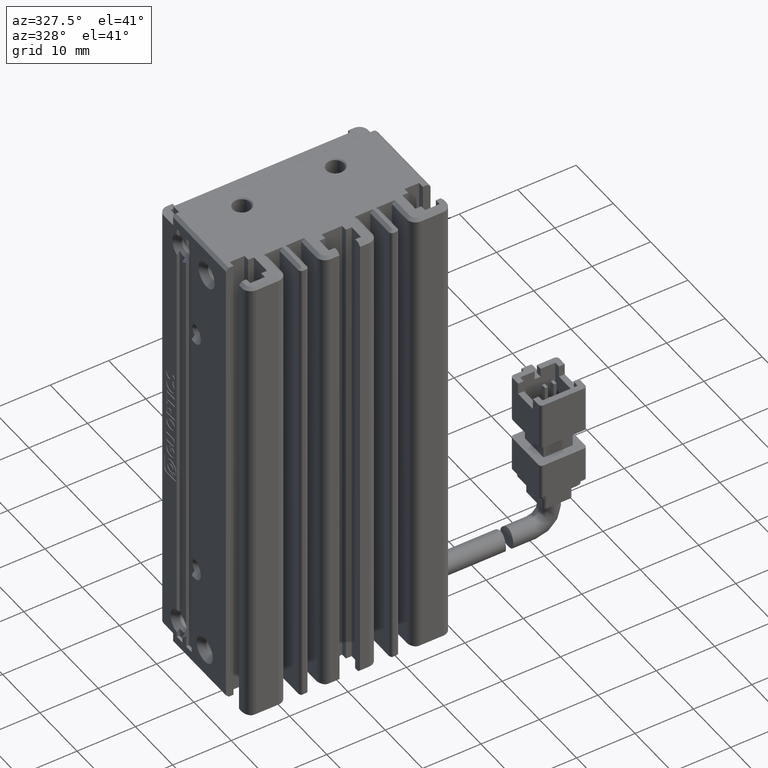
[diagram: clean part render]
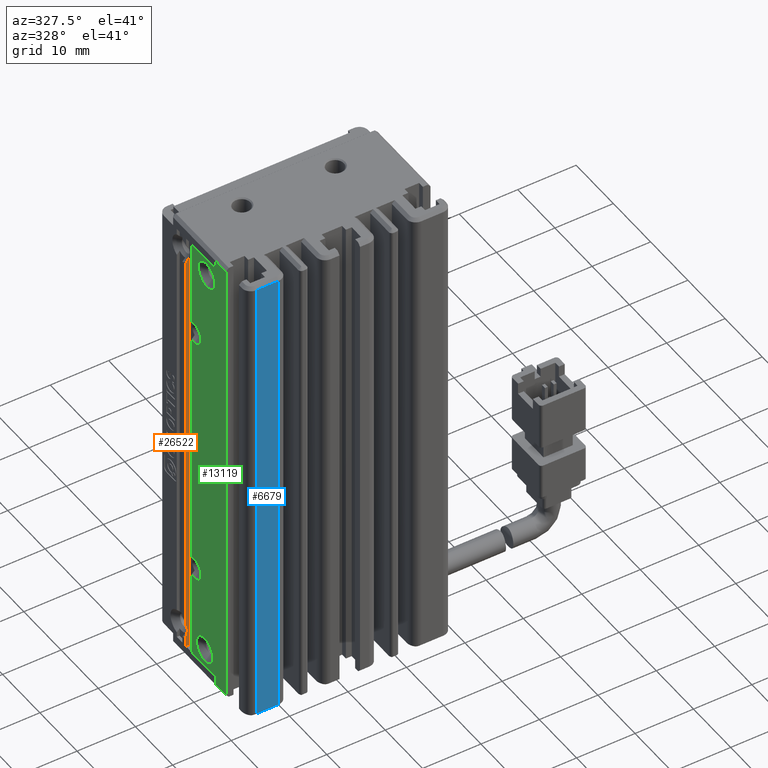
[diagram: same view with three faces highlighted in distinct colors, each labeled with its STEP entity id]
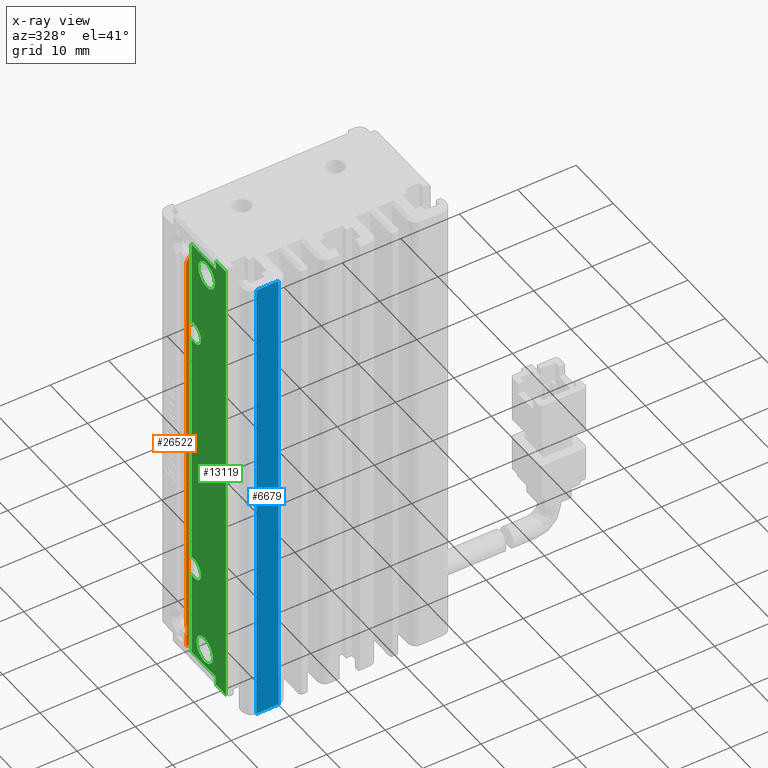
[diagram: x-ray of the same camera — body ghosted, the three highlighted faces saturated]
A machine part, auxiliary view with three faces highlighted in distinct colors.
The next image is the same camera in x-ray (body ghosted, the three faces saturated) — at least one of them is partly hidden behind the body in this view.
Their STEP definitions:

[orange] entity #26522 — the highlighted planar face has unit normal (0, 1, 0).
#1614 = CARTESIAN_POINT ( 'NONE',  ( 23.61318057848740200, 27.49073232304837700, -80.35262142458795200 ) ) ;
#2019 = DIRECTION ( 'NONE',  ( -1.000000000000000000, -0.0000000000000000000, 0.0000000000000000000 ) ) ;
#2197 = LINE ( 'NONE', #5284, #15017 ) ;
#3557 = VERTEX_POINT ( 'NONE', #4942 ) ;
#3917 = DIRECTION ( 'NONE',  ( 0.0000000000000000000, -0.0000000000000000000, 1.000000000000000000 ) ) ;
#4475 = EDGE_CURVE ( 'NONE', #17369, #20362, #8513, .T. ) ;
#4644 = ORIENTED_EDGE ( 'NONE', *, *, #4475, .F. ) ;
#4841 = DIRECTION ( 'NONE',  ( 0.0000000000000000000, 1.000000000000000000, 0.0000000000000000000 ) ) ;
#4942 = CARTESIAN_POINT ( 'NONE',  ( 23.42537974683542100, 27.49073232304837700, -154.0000000000000000 ) ) ;
#5284 = CARTESIAN_POINT ( 'NONE',  ( 23.92537974683542500, 27.49073232304837700, -74.00000000000001400 ) ) ;
#5932 = ORIENTED_EDGE ( 'NONE', *, *, #29307, .T. ) ;
#8513 = LINE ( 'NONE', #27758, #18546 ) ;
#8790 = VERTEX_POINT ( 'NONE', #26025 ) ;
#8810 = CARTESIAN_POINT ( 'NONE',  ( 23.42537974684338300, 27.49073232304837700, -151.9165151390459100 ) ) ;
#10890 = CARTESIAN_POINT ( 'NONE',  ( 23.42537974687180500, 27.49073232304837700, -80.60934769393912800 ) ) ;
#11009 = CARTESIAN_POINT ( 'NONE',  ( 23.78947896630798900, 27.49073232305029200, -80.08878915868484700 ) ) ;
#11270 = CARTESIAN_POINT ( 'NONE',  ( 23.62542448601338300, 27.49073232304838000, -151.3165876914230200 ) ) ;
#11399 = CARTESIAN_POINT ( 'NONE',  ( 23.53635299069658200, 27.49073232304837700, -150.3786627681278400 ) ) ;
#12175 = CARTESIAN_POINT ( 'NONE',  ( 23.92537974684820400, 27.49073232304837700, -79.80000000004396600 ) ) ;
#12296 = B_SPLINE_CURVE_WITH_KNOTS ( 'NONE', 3,
 ( #31993, #20212, #11399, #14427, #37648, #11270, #29149, #8810 ),
 .UNSPECIFIED., .F., .F.,
 ( 4, 2, 2, 4 ),
 ( 4.723738155263230500E-014, 0.0004690739845960369400, 0.0009381479691448365000, 0.001876295938242435600 ),
 .UNSPECIFIED. ) ;
#12581 = EDGE_CURVE ( 'NONE', #3557, #8790, #32488, .T. ) ;
#12651 = B_SPLINE_CURVE_WITH_KNOTS ( 'NONE', 3,
 ( #34187, #11009, #1614, #10890 ),
 .UNSPECIFIED., .F., .F.,
 ( 4, 4 ),
 ( 2.972244101261711800E-014, 0.0009513378420132232700 ),
 .UNSPECIFIED. ) ;
#13978 = CARTESIAN_POINT ( 'NONE',  ( 23.42537974684338300, 27.49073232304837700, -150.0834848609541400 ) ) ;
#14427 = CARTESIAN_POINT ( 'NONE',  ( 23.60594463680136100, 27.49073232304837300, -150.6835425281643100 ) ) ;
#15017 = VECTOR ( 'NONE', #37218, 1000.000000000000000 ) ;
#15380 = EDGE_CURVE ( 'NONE', #32893, #3557, #35131, .T. ) ;
#16167 = EDGE_LOOP ( 'NONE', ( #26963, #4644, #30639, #30288, #33846, #5932 ) ) ;
#16854 = VECTOR ( 'NONE', #29603, 1000.000000000000000 ) ;
#17369 = VERTEX_POINT ( 'NONE', #13978 ) ;
#17704 = AXIS2_PLACEMENT_3D ( 'NONE', #22613, #4841, #25320 ) ;
#17716 = EDGE_CURVE ( 'NONE', #33332, #20362, #12651, .T. ) ;
#18546 = VECTOR ( 'NONE', #3917, 1000.000000000000000 ) ;
#19413 = PLANE ( 'NONE',  #17704 ) ;
#20212 = CARTESIAN_POINT ( 'NONE',  ( 23.48633122258648600, 27.49073232305220300, -150.2297925878349100 ) ) ;
#20362 = VERTEX_POINT ( 'NONE', #22606 ) ;
#20544 = CARTESIAN_POINT ( 'NONE',  ( 23.42537974683542500, 27.49073232304837700, -74.00000000000001400 ) ) ;
#22606 = CARTESIAN_POINT ( 'NONE',  ( 23.42537974687180500, 27.49073232304837700, -80.60934769393912800 ) ) ;
#22613 = CARTESIAN_POINT ( 'NONE',  ( 40.92537974683542500, 27.49073232304837700, -74.00000000000001400 ) ) ;
#24478 = EDGE_CURVE ( 'NONE', #17369, #8790, #12296, .T. ) ;
#25320 = DIRECTION ( 'NONE',  ( 0.0000000000000000000, -0.0000000000000000000, 1.000000000000000000 ) ) ;
#26025 = CARTESIAN_POINT ( 'NONE',  ( 23.42537974684338300, 27.49073232304837700, -151.9165151390459100 ) ) ;
#26522 = ADVANCED_FACE ( 'NONE', ( #30781 ), #19413, .F. ) ;
#26963 = ORIENTED_EDGE ( 'NONE', *, *, #17716, .T. ) ;
#27758 = CARTESIAN_POINT ( 'NONE',  ( 23.42537974683542100, 27.49073232304837700, -74.00000000000001400 ) ) ;
#29149 = CARTESIAN_POINT ( 'NONE',  ( 23.54746813437199300, 27.49073232304837300, -151.6234545652118600 ) ) ;
#29307 = EDGE_CURVE ( 'NONE', #32893, #33332, #2197, .T. ) ;
#29603 = DIRECTION ( 'NONE',  ( 0.0000000000000000000, -0.0000000000000000000, 1.000000000000000000 ) ) ;
#30288 = ORIENTED_EDGE ( 'NONE', *, *, #12581, .F. ) ;
#30639 = ORIENTED_EDGE ( 'NONE', *, *, #24478, .T. ) ;
#30781 = FACE_OUTER_BOUND ( 'NONE', #16167, .T. ) ;
#31266 = CARTESIAN_POINT ( 'NONE',  ( 40.92537974683542500, 27.49073232304837700, -154.0000000000000000 ) ) ;
#31993 = CARTESIAN_POINT ( 'NONE',  ( 23.42537974684338300, 27.49073232304837700, -150.0834848609541400 ) ) ;
#32383 = VECTOR ( 'NONE', #2019, 1000.000000000000000 ) ;
#32488 = LINE ( 'NONE', #20544, #16854 ) ;
#32893 = VERTEX_POINT ( 'NONE', #35616 ) ;
#33332 = VERTEX_POINT ( 'NONE', #12175 ) ;
#33846 = ORIENTED_EDGE ( 'NONE', *, *, #15380, .F. ) ;
#34187 = CARTESIAN_POINT ( 'NONE',  ( 23.92537974684820400, 27.49073232304837700, -79.80000000004396600 ) ) ;
#35131 = LINE ( 'NONE', #31266, #32383 ) ;
#35616 = CARTESIAN_POINT ( 'NONE',  ( 23.92537974683542500, 27.49073232304837700, -154.0000000000000000 ) ) ;
#37218 = DIRECTION ( 'NONE',  ( 0.0000000000000000000, -0.0000000000000000000, 1.000000000000000000 ) ) ;
#37648 = CARTESIAN_POINT ( 'NONE',  ( 23.62535734736366800, 27.49073232304837300, -150.8412823930726700 ) ) ;

[blue] entity #6679 — the highlighted planar face has unit normal (0, -1, 0).
#1297 = CARTESIAN_POINT ( 'NONE',  ( 28.72537974683542200, 10.99073232303147300, -155.4999999999879500 ) ) ;
#2024 = ORIENTED_EDGE ( 'NONE', *, *, #22842, .F. ) ;
#2185 = ORIENTED_EDGE ( 'NONE', *, *, #12808, .T. ) ;
#2326 = DIRECTION ( 'NONE',  ( 0.0000000000000000000, -1.000000000000000000, 0.0000000000000000000 ) ) ;
#2620 = CARTESIAN_POINT ( 'NONE',  ( 28.72537974683542200, 10.99073232304837000, -74.00000000000001400 ) ) ;
#2756 = VERTEX_POINT ( 'NONE', #3594 ) ;
#3594 = CARTESIAN_POINT ( 'NONE',  ( 28.72537974683542200, 10.99073232304568400, -74.49999999999784000 ) ) ;
#4544 = CARTESIAN_POINT ( 'NONE',  ( 40.92537974683542500, 10.99073232304837000, -74.50000000000001400 ) ) ;
#6256 = DIRECTION ( 'NONE',  ( -1.000000000000000000, -0.0000000000000000000, -0.0000000000000000000 ) ) ;
#6650 = EDGE_LOOP ( 'NONE', ( #18860, #2024, #7963, #2185 ) ) ;
#6679 = ADVANCED_FACE ( 'NONE', ( #30712 ), #16915, .T. ) ;
#7293 = DIRECTION ( 'NONE',  ( 0.0000000000000000000, -0.0000000000000000000, -1.000000000000000000 ) ) ;
#7455 = DIRECTION ( 'NONE',  ( -1.000000000000000000, 0.0000000000000000000, -0.0000000000000000000 ) ) ;
#7963 = ORIENTED_EDGE ( 'NONE', *, *, #31501, .T. ) ;
#8749 = VECTOR ( 'NONE', #7293, 1000.000000000000000 ) ;
#9404 = VECTOR ( 'NONE', #19817, 1000.000000000000000 ) ;
#10019 = CARTESIAN_POINT ( 'NONE',  ( 24.92537974683542500, 10.99073232304837000, -74.00000000000001400 ) ) ;
#12808 = EDGE_CURVE ( 'NONE', #2756, #21972, #23233, .T. ) ;
#13069 = VERTEX_POINT ( 'NONE', #21145 ) ;
#16915 = PLANE ( 'NONE',  #20413 ) ;
#18860 = ORIENTED_EDGE ( 'NONE', *, *, #35378, .T. ) ;
#19817 = DIRECTION ( 'NONE',  ( -0.0000000000000000000, 0.0000000000000000000, 1.000000000000000000 ) ) ;
#20413 = AXIS2_PLACEMENT_3D ( 'NONE', #37463, #2326, #34132 ) ;
#20494 = CARTESIAN_POINT ( 'NONE',  ( 40.92537974683542500, 10.99073232304837000, -155.5000000000000000 ) ) ;
#21145 = CARTESIAN_POINT ( 'NONE',  ( 24.92537974683541800, 10.99073232307142000, -155.4999999999759000 ) ) ;
#21972 = VERTEX_POINT ( 'NONE', #29633 ) ;
#22842 = EDGE_CURVE ( 'NONE', #37498, #13069, #35906, .T. ) ;
#23233 = LINE ( 'NONE', #4544, #34253 ) ;
#26699 = VECTOR ( 'NONE', #6256, 1000.000000000000000 ) ;
#29633 = CARTESIAN_POINT ( 'NONE',  ( 24.92537974683542500, 10.99073232301726200, -74.50000000001097100 ) ) ;
#30712 = FACE_OUTER_BOUND ( 'NONE', #6650, .T. ) ;
#31501 = EDGE_CURVE ( 'NONE', #37498, #2756, #33713, .T. ) ;
#33713 = LINE ( 'NONE', #2620, #9404 ) ;
#34132 = DIRECTION ( 'NONE',  ( 0.0000000000000000000, -0.0000000000000000000, -1.000000000000000000 ) ) ;
#34253 = VECTOR ( 'NONE', #7455, 1000.000000000000000 ) ;
#35378 = EDGE_CURVE ( 'NONE', #21972, #13069, #37642, .T. ) ;
#35906 = LINE ( 'NONE', #20494, #26699 ) ;
#37463 = CARTESIAN_POINT ( 'NONE',  ( 40.92537974683542500, 10.99073232304837000, -74.00000000000001400 ) ) ;
#37498 = VERTEX_POINT ( 'NONE', #1297 ) ;
#37642 = LINE ( 'NONE', #10019, #8749 ) ;

[green] entity #13119 — the highlighted planar face has unit normal (-1, 0, 0).
#9 = CARTESIAN_POINT ( 'NONE',  ( 23.42537974690818500, 21.99073232304837300, -79.00000000000000000 ) ) ;
#601 = LINE ( 'NONE', #11858, #3340 ) ;
#1246 = EDGE_CURVE ( 'NONE', #20893, #37728, #9625, .T. ) ;
#1277 = VERTEX_POINT ( 'NONE', #21237 ) ;
#1366 = VECTOR ( 'NONE', #1978, 1000.000000000000000 ) ;
#1786 = CARTESIAN_POINT ( 'NONE',  ( 23.42537974692864800, 25.29073232304837400, -137.5000000000000000 ) ) ;
#1910 = DIRECTION ( 'NONE',  ( 1.000000000000000000, -0.0000000000000000000, -0.0000000000000000000 ) ) ;
#1978 = DIRECTION ( 'NONE',  ( -0.0000000000000000000, -0.0000000000000000000, -1.000000000000000000 ) ) ;
#2124 = EDGE_CURVE ( 'NONE', #33030, #26289, #14557, .T. ) ;
#2209 = CIRCLE ( 'NONE', #15225, 1.800000000002910400 ) ;
#2481 = DIRECTION ( 'NONE',  ( 0.0000000000000000000, -7.709882115440010200E-015, 1.000000000000000000 ) ) ;
#2582 = VECTOR ( 'NONE', #5379, 1000.000000000000000 ) ;
#3080 = DIRECTION ( 'NONE',  ( 1.000000000000000000, -0.0000000000000000000, -0.0000000000000000000 ) ) ;
#3088 = VERTEX_POINT ( 'NONE', #16862 ) ;
#3340 = VECTOR ( 'NONE', #14733, 1000.000000000000000 ) ;
#3987 = ORIENTED_EDGE ( 'NONE', *, *, #2124, .T. ) ;
#3989 = PLANE ( 'NONE',  #13882 ) ;
#4239 = CARTESIAN_POINT ( 'NONE',  ( 23.42537974688772100, 25.29073232304837400, -90.69999999999709000 ) ) ;
#4771 = DIRECTION ( 'NONE',  ( 0.0000000000000000000, 1.000000000000000000, 0.0000000000000000000 ) ) ;
#4901 = ORIENTED_EDGE ( 'NONE', *, *, #12564, .T. ) ;
#5113 = EDGE_CURVE ( 'NONE', #23326, #8621, #6971, .T. ) ;
#5379 = DIRECTION ( 'NONE',  ( 0.0000000000000000000, 1.000000000000000000, 0.0000000000000000000 ) ) ;
#5862 = ORIENTED_EDGE ( 'NONE', *, *, #19368, .F. ) ;
#5883 = LINE ( 'NONE', #7551, #28363 ) ;
#5948 = EDGE_CURVE ( 'NONE', #1277, #12805, #28503, .T. ) ;
#6237 = EDGE_CURVE ( 'NONE', #30608, #9184, #8734, .T. ) ;
#6363 = DIRECTION ( 'NONE',  ( 0.0000000000000000000, 0.0000000000000000000, 1.000000000000000000 ) ) ;
#6596 = LINE ( 'NONE', #7675, #30457 ) ;
#6971 = LINE ( 'NONE', #27774, #20740 ) ;
#7100 = ORIENTED_EDGE ( 'NONE', *, *, #13847, .T. ) ;
#7171 = DIRECTION ( 'NONE',  ( 1.000000000000000000, -0.0000000000000000000, -0.0000000000000000000 ) ) ;
#7321 = LINE ( 'NONE', #37497, #1366 ) ;
#7370 = DIRECTION ( 'NONE',  ( 0.0000000000000000000, 0.0000000000000000000, 1.000000000000000000 ) ) ;
#7383 = VECTOR ( 'NONE', #13186, 1000.000000000000000 ) ;
#7551 = CARTESIAN_POINT ( 'NONE',  ( 23.42537974683542500, 34.99073232304837700, -76.00000000000001400 ) ) ;
#7569 = CARTESIAN_POINT ( 'NONE',  ( 23.42537974683542100, 19.49073232304836600, -155.5000000000000000 ) ) ;
#7675 = CARTESIAN_POINT ( 'NONE',  ( 23.42537974683542100, 19.49073232304836600, -74.00000000000001400 ) ) ;
#7760 = AXIS2_PLACEMENT_3D ( 'NONE', #14715, #3080, #26488 ) ;
#7781 = EDGE_LOOP ( 'NONE', ( #23774, #15311 ) ) ;
#8190 = CARTESIAN_POINT ( 'NONE',  ( 23.42537974683542100, 19.49073232304836600, -76.00000000000001400 ) ) ;
#8338 = DIRECTION ( 'NONE',  ( 0.0000000000000000000, -3.854941057720005100E-015, 1.000000000000000000 ) ) ;
#8477 = ORIENTED_EDGE ( 'NONE', *, *, #16593, .T. ) ;
#8530 = VERTEX_POINT ( 'NONE', #13160 ) ;
#8621 = VERTEX_POINT ( 'NONE', #16932 ) ;
#8628 = EDGE_LOOP ( 'NONE', ( #31378, #13722 ) ) ;
#8734 = CIRCLE ( 'NONE', #30089, 2.200000000014829200 ) ;
#8772 = CARTESIAN_POINT ( 'NONE',  ( 23.42537974688772100, 25.29073232304837400, -92.50000000000000000 ) ) ;
#8777 = CARTESIAN_POINT ( 'NONE',  ( 23.42537974692864800, 25.29073232304837400, -137.5000000000000000 ) ) ;
#8791 = AXIS2_PLACEMENT_3D ( 'NONE', #30829, #13429, #7370 ) ;
#9076 = EDGE_CURVE ( 'NONE', #3088, #25934, #6596, .T. ) ;
#9093 = LINE ( 'NONE', #14639, #26010 ) ;
#9148 = ORIENTED_EDGE ( 'NONE', *, *, #18613, .T. ) ;
#9184 = VERTEX_POINT ( 'NONE', #34224 ) ;
#9578 = ORIENTED_EDGE ( 'NONE', *, *, #37111, .T. ) ;
#9625 = CIRCLE ( 'NONE', #21226, 1.800000000002910400 ) ;
#10482 = CARTESIAN_POINT ( 'NONE',  ( 23.42537974683542100, 16.79073232304837400, -74.00000000000001400 ) ) ;
#11858 = CARTESIAN_POINT ( 'NONE',  ( 23.42537974683542100, 19.49073232304836600, -74.00000000000001400 ) ) ;
#12564 = EDGE_CURVE ( 'NONE', #36146, #24115, #9093, .T. ) ;
#12614 = DIRECTION ( 'NONE',  ( -1.000000000000000000, 0.0000000000000000000, 0.0000000000000000000 ) ) ;
#12743 = ORIENTED_EDGE ( 'NONE', *, *, #27246, .T. ) ;
#12805 = VERTEX_POINT ( 'NONE', #7569 ) ;
#13119 = ADVANCED_FACE ( 'NONE', ( #13588, #36058, #16296 ), #3989, .T. ) ;
#13160 = CARTESIAN_POINT ( 'NONE',  ( 23.42537974690818500, 21.99073232304837300, -81.19999999996071000 ) ) ;
#13186 = DIRECTION ( 'NONE',  ( 0.0000000000000000000, 1.000000000000000000, -0.0000000000000000000 ) ) ;
#13247 = CARTESIAN_POINT ( 'NONE',  ( 23.42537974683542100, 25.99073232304837300, -154.0000000000000000 ) ) ;
#13429 = DIRECTION ( 'NONE',  ( 1.000000000000000000, -0.0000000000000000000, -0.0000000000000000000 ) ) ;
#13475 = CARTESIAN_POINT ( 'NONE',  ( 23.42537974688772100, 25.29073232304837400, -92.50000000000000000 ) ) ;
#13588 = FACE_OUTER_BOUND ( 'NONE', #26924, .T. ) ;
#13722 = ORIENTED_EDGE ( 'NONE', *, *, #31404, .T. ) ;
#13847 = EDGE_CURVE ( 'NONE', #1277, #34818, #15233, .T. ) ;
#13882 = AXIS2_PLACEMENT_3D ( 'NONE', #21392, #12614, #30493 ) ;
#14195 = CARTESIAN_POINT ( 'NONE',  ( 23.42537974689088300, 25.99073232304837300, -94.15831239517744700 ) ) ;
#14291 = CARTESIAN_POINT ( 'NONE',  ( 23.42537974690007000, 25.99073232304837300, -139.1583123952118800 ) ) ;
#14294 = CARTESIAN_POINT ( 'NONE',  ( 23.42537974685134100, 22.49073232304836600, -151.0000000000000300 ) ) ;
#14390 = DIRECTION ( 'NONE',  ( 1.000000000000000000, -0.0000000000000000000, -0.0000000000000000000 ) ) ;
#14454 = ORIENTED_EDGE ( 'NONE', *, *, #5113, .T. ) ;
#14557 = CIRCLE ( 'NONE', #37748, 1.800000000002910400 ) ;
#14639 = CARTESIAN_POINT ( 'NONE',  ( 23.42537974683542100, 25.99073232304837300, -74.00000000000001400 ) ) ;
#14715 = CARTESIAN_POINT ( 'NONE',  ( 23.42537974688772100, 25.29073232304837400, -92.50000000000000000 ) ) ;
#14733 = DIRECTION ( 'NONE',  ( -0.0000000000000000000, -0.0000000000000000000, -1.000000000000000000 ) ) ;
#15069 = CARTESIAN_POINT ( 'NONE',  ( 23.42537974692864800, 25.29073232304837400, -137.5000000000000000 ) ) ;
#15225 = AXIS2_PLACEMENT_3D ( 'NONE', #1786, #7171, #33717 ) ;
#15233 = LINE ( 'NONE', #10482, #36415 ) ;
#15311 = ORIENTED_EDGE ( 'NONE', *, *, #6237, .T. ) ;
#15352 = ORIENTED_EDGE ( 'NONE', *, *, #1246, .T. ) ;
#15462 = CARTESIAN_POINT ( 'NONE',  ( 23.42537974690818500, 21.99073232304837300, -76.80000000003929000 ) ) ;
#15859 = CIRCLE ( 'NONE', #20846, 1.800000000002910400 ) ;
#16178 = VERTEX_POINT ( 'NONE', #26671 ) ;
#16223 = LINE ( 'NONE', #16354, #16706 ) ;
#16296 = FACE_BOUND ( 'NONE', #8628, .T. ) ;
#16354 = CARTESIAN_POINT ( 'NONE',  ( 23.42537974683542100, 7.083797468354437600, -74.50000000000001400 ) ) ;
#16390 = AXIS2_PLACEMENT_3D ( 'NONE', #35928, #30533, #24634 ) ;
#16593 = EDGE_CURVE ( 'NONE', #37164, #12805, #601, .T. ) ;
#16706 = VECTOR ( 'NONE', #25608, 1000.000000000000000 ) ;
#16862 = CARTESIAN_POINT ( 'NONE',  ( 23.42537974683542100, 19.49073232304836600, -74.50000000000001400 ) ) ;
#16932 = CARTESIAN_POINT ( 'NONE',  ( 23.42537974690007400, 25.99073232304837300, -135.8416876047881200 ) ) ;
#17242 = DIRECTION ( 'NONE',  ( 1.000000000000000000, -0.0000000000000000000, -0.0000000000000000000 ) ) ;
#17426 = EDGE_CURVE ( 'NONE', #19139, #8530, #26113, .T. ) ;
#17994 = DIRECTION ( 'NONE',  ( 1.000000000000000000, -0.0000000000000000000, -0.0000000000000000000 ) ) ;
#18302 = ORIENTED_EDGE ( 'NONE', *, *, #18682, .T. ) ;
#18613 = EDGE_CURVE ( 'NONE', #8621, #20893, #2209, .T. ) ;
#18682 = EDGE_CURVE ( 'NONE', #25934, #20200, #5883, .T. ) ;
#18685 = EDGE_CURVE ( 'NONE', #26289, #23326, #19652, .T. ) ;
#19139 = VERTEX_POINT ( 'NONE', #15462 ) ;
#19236 = ORIENTED_EDGE ( 'NONE', *, *, #29867, .T. ) ;
#19368 = EDGE_CURVE ( 'NONE', #37164, #24115, #31485, .T. ) ;
#19652 = CIRCLE ( 'NONE', #30968, 1.800000000002910400 ) ;
#20071 = CIRCLE ( 'NONE', #16390, 2.200000000014829200 ) ;
#20200 = VERTEX_POINT ( 'NONE', #30416 ) ;
#20353 = DIRECTION ( 'NONE',  ( 0.0000000000000000000, 0.0000000000000000000, 1.000000000000000000 ) ) ;
#20655 = ORIENTED_EDGE ( 'NONE', *, *, #30545, .T. ) ;
#20740 = VECTOR ( 'NONE', #36795, 1000.000000000000000 ) ;
#20846 = AXIS2_PLACEMENT_3D ( 'NONE', #8777, #22858, #2481 ) ;
#20893 = VERTEX_POINT ( 'NONE', #31023 ) ;
#21092 = CARTESIAN_POINT ( 'NONE',  ( 23.42537974688772100, 25.29073232304837400, -94.30000000000291000 ) ) ;
#21226 = AXIS2_PLACEMENT_3D ( 'NONE', #15069, #17994, #6363 ) ;
#21237 = CARTESIAN_POINT ( 'NONE',  ( 23.42537974683541800, 16.79073232304837400, -155.5000000000000000 ) ) ;
#21392 = CARTESIAN_POINT ( 'NONE',  ( 23.42537974683542100, 7.083797468354437600, -74.00000000000001400 ) ) ;
#21643 = CARTESIAN_POINT ( 'NONE',  ( 23.42537974692864800, 25.29073232304837400, -139.3000000000029100 ) ) ;
#22030 = AXIS2_PLACEMENT_3D ( 'NONE', #9, #17242, #20353 ) ;
#22282 = DIRECTION ( 'NONE',  ( -0.0000000000000000000, -0.0000000000000000000, -1.000000000000000000 ) ) ;
#22647 = ORIENTED_EDGE ( 'NONE', *, *, #9076, .T. ) ;
#22858 = DIRECTION ( 'NONE',  ( 1.000000000000000000, -0.0000000000000000000, -0.0000000000000000000 ) ) ;
#23116 = DIRECTION ( 'NONE',  ( 1.000000000000000000, -0.0000000000000000000, -0.0000000000000000000 ) ) ;
#23326 = VERTEX_POINT ( 'NONE', #14195 ) ;
#23774 = ORIENTED_EDGE ( 'NONE', *, *, #29009, .T. ) ;
#23860 = DIRECTION ( 'NONE',  ( -0.0000000000000000000, -0.0000000000000000000, -1.000000000000000000 ) ) ;
#24115 = VERTEX_POINT ( 'NONE', #13247 ) ;
#24603 = ORIENTED_EDGE ( 'NONE', *, *, #18685, .T. ) ;
#24634 = DIRECTION ( 'NONE',  ( 0.0000000000000000000, 0.0000000000000000000, 1.000000000000000000 ) ) ;
#24938 = DIRECTION ( 'NONE',  ( 0.0000000000000000000, 0.0000000000000000000, 1.000000000000000000 ) ) ;
#25608 = DIRECTION ( 'NONE',  ( 0.0000000000000000000, 1.000000000000000000, 0.0000000000000000000 ) ) ;
#25934 = VERTEX_POINT ( 'NONE', #8190 ) ;
#26010 = VECTOR ( 'NONE', #23860, 1000.000000000000000 ) ;
#26113 = CIRCLE ( 'NONE', #22030, 2.199999999960705400 ) ;
#26289 = VERTEX_POINT ( 'NONE', #21092 ) ;
#26351 = CIRCLE ( 'NONE', #8791, 2.199999999960705400 ) ;
#26488 = DIRECTION ( 'NONE',  ( 0.0000000000000000000, 7.709882115440010200E-015, 1.000000000000000000 ) ) ;
#26671 = CARTESIAN_POINT ( 'NONE',  ( 23.42537974689088300, 25.99073232304837300, -90.84168760482258200 ) ) ;
#26859 = CARTESIAN_POINT ( 'NONE',  ( 23.42537974685134100, 22.49073232304836600, -153.2000000000148500 ) ) ;
#26924 = EDGE_LOOP ( 'NONE', ( #8477, #37647, #7100, #9578, #22647, #18302, #12743, #20655, #3987, #24603, #14454, #9148, #15352, #19236, #4901, #5862 ) ) ;
#27246 = EDGE_CURVE ( 'NONE', #20200, #16178, #7321, .T. ) ;
#27774 = CARTESIAN_POINT ( 'NONE',  ( 23.42537974683542100, 25.99073232304837300, -74.00000000000001400 ) ) ;
#28285 = CARTESIAN_POINT ( 'NONE',  ( 23.42537974683542100, 16.79073232304837400, -74.50000000000001400 ) ) ;
#28363 = VECTOR ( 'NONE', #4771, 1000.000000000000000 ) ;
#28503 = LINE ( 'NONE', #30707, #7383 ) ;
#28800 = CARTESIAN_POINT ( 'NONE',  ( 23.42537974683542500, 34.99073232304837700, -154.0000000000000000 ) ) ;
#29009 = EDGE_CURVE ( 'NONE', #9184, #30608, #20071, .T. ) ;
#29867 = EDGE_CURVE ( 'NONE', #37728, #36146, #15859, .T. ) ;
#30089 = AXIS2_PLACEMENT_3D ( 'NONE', #14294, #23116, #35420 ) ;
#30416 = CARTESIAN_POINT ( 'NONE',  ( 23.42537974683542100, 25.99073232304837300, -76.00000000000001400 ) ) ;
#30457 = VECTOR ( 'NONE', #22282, 1000.000000000000000 ) ;
#30493 = DIRECTION ( 'NONE',  ( 0.0000000000000000000, 0.0000000000000000000, 1.000000000000000000 ) ) ;
#30533 = DIRECTION ( 'NONE',  ( 1.000000000000000000, -0.0000000000000000000, -0.0000000000000000000 ) ) ;
#30545 = EDGE_CURVE ( 'NONE', #16178, #33030, #31370, .T. ) ;
#30608 = VERTEX_POINT ( 'NONE', #26859 ) ;
#30707 = CARTESIAN_POINT ( 'NONE',  ( 23.42537974683541400, 7.083797468354437600, -155.5000000000000000 ) ) ;
#30829 = CARTESIAN_POINT ( 'NONE',  ( 23.42537974690818500, 21.99073232304837300, -79.00000000000000000 ) ) ;
#30968 = AXIS2_PLACEMENT_3D ( 'NONE', #13475, #1910, #8338 ) ;
#31023 = CARTESIAN_POINT ( 'NONE',  ( 23.42537974692864800, 25.29073232304837400, -135.6999999999970900 ) ) ;
#31370 = CIRCLE ( 'NONE', #7760, 1.800000000002910400 ) ;
#31378 = ORIENTED_EDGE ( 'NONE', *, *, #17426, .T. ) ;
#31404 = EDGE_CURVE ( 'NONE', #8530, #19139, #26351, .T. ) ;
#31485 = LINE ( 'NONE', #28800, #2582 ) ;
#32209 = DIRECTION ( 'NONE',  ( 0.0000000000000000000, 0.0000000000000000000, 1.000000000000000000 ) ) ;
#32538 = CARTESIAN_POINT ( 'NONE',  ( 23.42537974683542100, 19.49073232304836600, -154.0000000000000000 ) ) ;
#33030 = VERTEX_POINT ( 'NONE', #4239 ) ;
#33717 = DIRECTION ( 'NONE',  ( 0.0000000000000000000, -5.589664533694007300E-014, 1.000000000000000000 ) ) ;
#34224 = CARTESIAN_POINT ( 'NONE',  ( 23.42537974685134100, 22.49073232304836600, -148.7999999999852000 ) ) ;
#34818 = VERTEX_POINT ( 'NONE', #28285 ) ;
#35420 = DIRECTION ( 'NONE',  ( 0.0000000000000000000, 0.0000000000000000000, 1.000000000000000000 ) ) ;
#35928 = CARTESIAN_POINT ( 'NONE',  ( 23.42537974685134100, 22.49073232304836600, -151.0000000000000300 ) ) ;
#36058 = FACE_BOUND ( 'NONE', #7781, .T. ) ;
#36146 = VERTEX_POINT ( 'NONE', #14291 ) ;
#36415 = VECTOR ( 'NONE', #24938, 1000.000000000000000 ) ;
#36795 = DIRECTION ( 'NONE',  ( -0.0000000000000000000, -0.0000000000000000000, -1.000000000000000000 ) ) ;
#37111 = EDGE_CURVE ( 'NONE', #34818, #3088, #16223, .T. ) ;
#37164 = VERTEX_POINT ( 'NONE', #32538 ) ;
#37497 = CARTESIAN_POINT ( 'NONE',  ( 23.42537974683542100, 25.99073232304837300, -74.00000000000001400 ) ) ;
#37647 = ORIENTED_EDGE ( 'NONE', *, *, #5948, .F. ) ;
#37728 = VERTEX_POINT ( 'NONE', #21643 ) ;
#37748 = AXIS2_PLACEMENT_3D ( 'NONE', #8772, #14390, #32209 ) ;